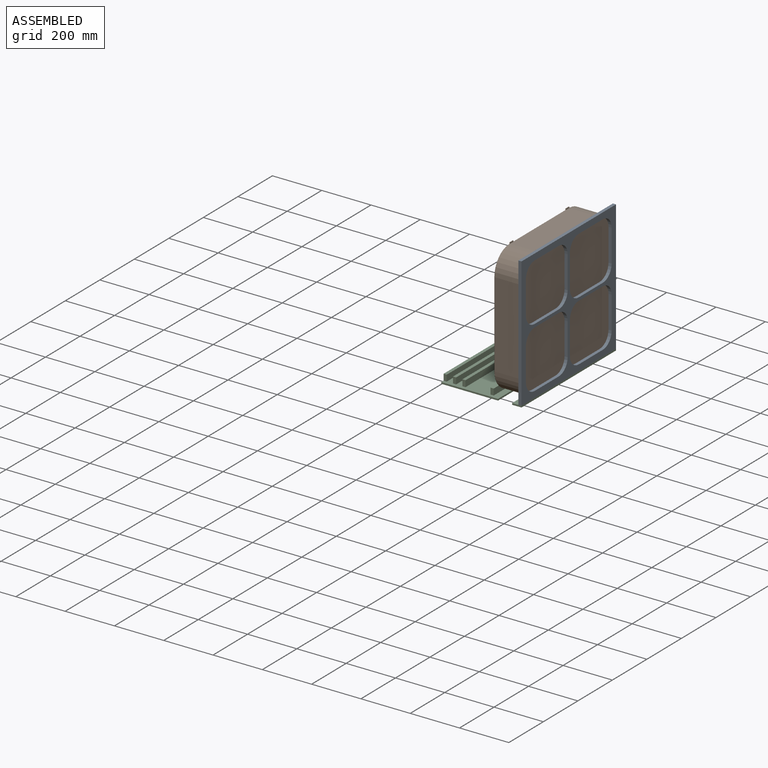
[diagram: assembled view]
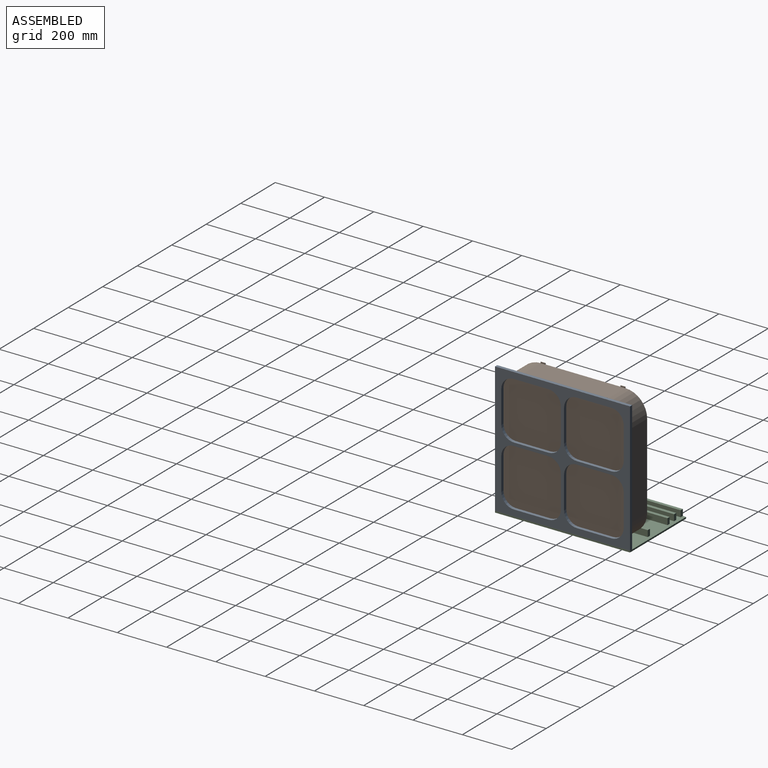
[diagram: assembled view, second angle]
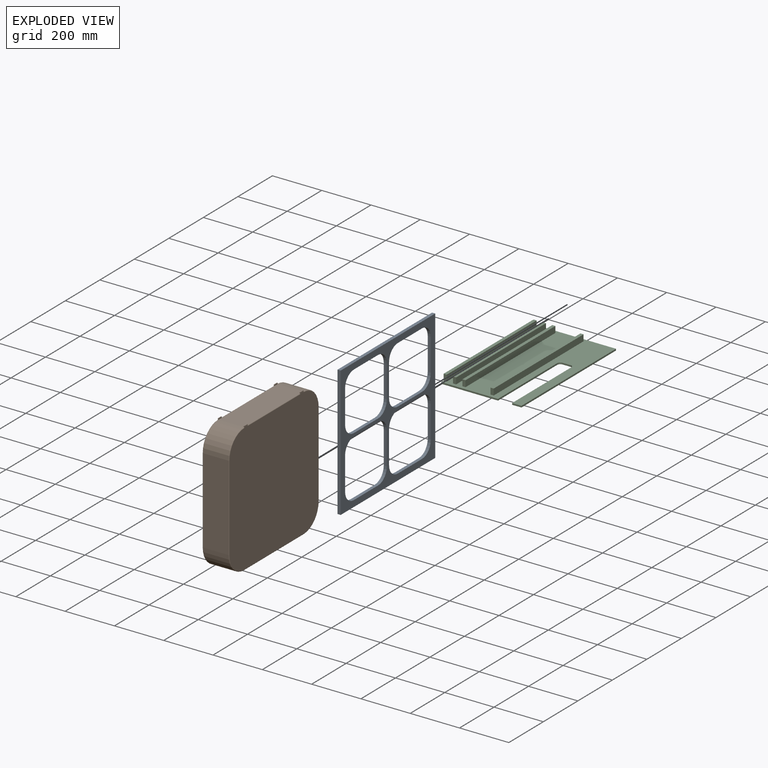
[diagram: exploded view]
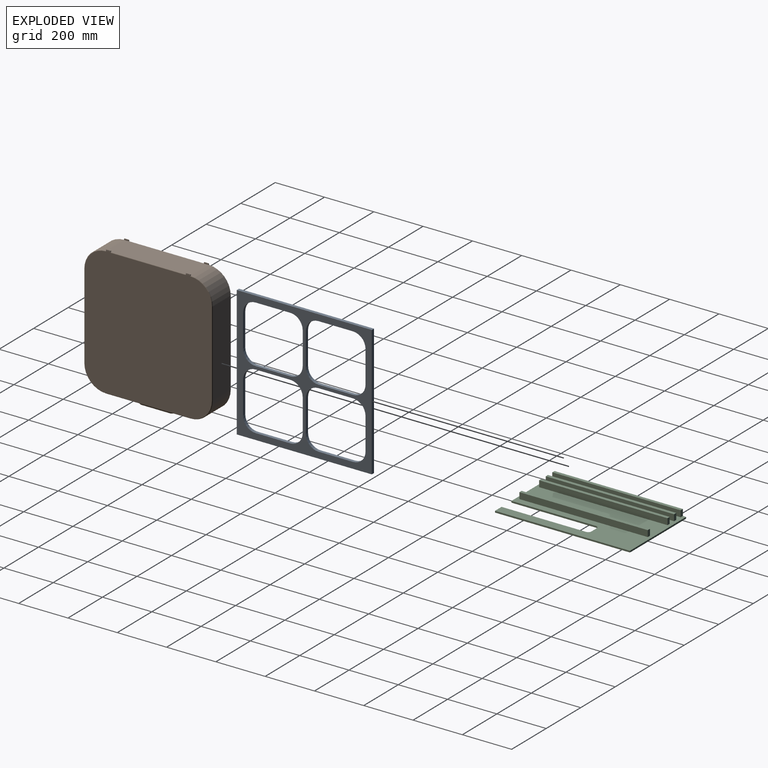
[diagram: exploded view, second angle]
ASSEMBLY  parts=3 mates=3
PART A: 38 faces, bbox 547.7x529.4x12.7 mm
  f0: plane 547.7x529.44mm, normal (0,0,1), area 73227.4mm2, adj f2,f3,f4,f5,f6,f7,f8,f9
  f1: plane 547.7x529.44mm, normal (0,0,-1), area 73227.4mm2, adj f2,f3,f4,f5,f6,f7,f8,f9
  f2: plane 547.7x12.7mm, normal (0,-1,0), area 6955.8mm2, adj f0,f1,f3,f5
  f3: plane 529.44x12.7mm, normal (1,0,0), area 6723.9mm2, adj f0,f1,f2,f4
  f4: plane 547.7x12.7mm, normal (0,1,0), area 6955.8mm2, adj f0,f1,f3,f5
  f5: plane 529.44x12.7mm, normal (-1,0,0), area 6723.9mm2, adj f0,f1,f2,f4
  f6: plane 131.37x12.7mm, normal (-1,0,0), area 1668.4mm2, adj f0,f1,f7,f13
  f7: cylinder r=50.8mm len=50.8mm, axis (0,0,1), area 1013.4mm2, adj f0,f1,f6,f8
  f8: plane 140.5x12.7mm, normal (0,-1,0), area 1784.4mm2, adj f0,f1,f7,f9
  f9: cylinder r=50.8mm len=50.8mm, axis (0,0,1), area 1013.4mm2, adj f0,f1,f8,f10
  f10: plane 131.37x12.7mm, normal (1,0,0), area 1668.4mm2, adj f0,f1,f9,f11
  f11: cylinder r=50.8mm len=50.8mm, axis (0,0,1), area 1013.4mm2, adj f0,f1,f10,f12
  f12: plane 140.5x12.7mm, normal (0,1,0), area 1784.4mm2, adj f0,f1,f11,f13
  f13: cylinder r=50.8mm len=50.8mm, axis (0,0,1), area 1013.4mm2, adj f0,f1,f6,f12
  f14: plane 131.37x12.7mm, normal (-1,0,0), area 1668.4mm2, adj f0,f1,f15,f21
  f15: cylinder r=50.8mm len=50.8mm, axis (0,0,1), area 1013.4mm2, adj f0,f1,f14,f16
  f16: plane 140.5x12.7mm, normal (0,-1,0), area 1784.4mm2, adj f0,f1,f15,f17
  f17: cylinder r=50.8mm len=50.8mm, axis (0,0,1), area 1013.4mm2, adj f0,f1,f16,f18
  f18: plane 131.37x12.7mm, normal (1,0,0), area 1668.4mm2, adj f0,f1,f17,f19
  f19: cylinder r=50.8mm len=50.8mm, axis (0,0,1), area 1013.4mm2, adj f0,f1,f18,f20
  f20: plane 140.5x12.7mm, normal (0,1,0), area 1784.4mm2, adj f0,f1,f19,f21
  f21: cylinder r=50.8mm len=50.8mm, axis (0,0,1), area 1013.4mm2, adj f0,f1,f14,f20
  f22: cylinder r=50.8mm len=50.8mm, axis (0,0,1), area 1013.4mm2, adj f0,f1,f23,f29
  f23: plane 140.5x12.7mm, normal (0,-1,0), area 1784.4mm2, adj f0,f1,f22,f24
  f24: cylinder r=50.8mm len=50.8mm, axis (0,0,1), area 1013.4mm2, adj f0,f1,f23,f25
  f25: plane 131.37x12.7mm, normal (1,0,0), area 1668.4mm2, adj f0,f1,f24,f26
  f26: cylinder r=50.8mm len=50.8mm, axis (0,0,1), area 1013.4mm2, adj f0,f1,f25,f27
  f27: plane 140.5x12.7mm, normal (0,1,0), area 1784.4mm2, adj f0,f1,f26,f28
  f28: cylinder r=50.8mm len=50.8mm, axis (0,0,1), area 1013.4mm2, adj f0,f1,f27,f29
  f29: plane 131.37x12.7mm, normal (-1,0,0), area 1668.4mm2, adj f0,f1,f22,f28
  f30: cylinder r=50.8mm len=50.8mm, axis (0,0,1), area 1013.4mm2, adj f0,f1,f31,f37
  f31: plane 131.37x12.7mm, normal (-1,0,0), area 1668.4mm2, adj f0,f1,f30,f32
  f32: cylinder r=50.8mm len=50.8mm, axis (0,0,1), area 1013.4mm2, adj f0,f1,f31,f33
  f33: plane 140.5x12.7mm, normal (0,-1,0), area 1784.4mm2, adj f0,f1,f32,f34
  f34: cylinder r=50.8mm len=50.8mm, axis (0,0,1), area 1013.4mm2, adj f0,f1,f33,f35
  f35: plane 131.37x12.7mm, normal (1,0,0), area 1668.4mm2, adj f0,f1,f34,f36
  f36: cylinder r=50.8mm len=50.8mm, axis (0,0,1), area 1013.4mm2, adj f0,f1,f35,f37
  f37: plane 140.5x12.7mm, normal (0,1,0), area 1784.4mm2, adj f0,f1,f30,f36
PART B: 59 faces, bbox 535.3x108x556.6 mm
  f0: plane 342.9x102.87mm, normal (0,0,-1), area 35225.7mm2, adj f2,f7,f24,f25,f28,f31,f33,f36
  f1: plane 342.9x102.87mm, normal (0,0,1), area 31372.9mm2, adj f4,f5,f10,f13,f14,f15,f16,f18
  f2: cylinder r=88.9mm len=102.87mm, axis (0,-1,0), area 14365.2mm2, adj f0,f3,f29,f38,f49,f58
  f3: plane 346.08x102.87mm, normal (1,0,0), area 35600.7mm2, adj f2,f4,f48,f57
  f4: cylinder r=88.9mm len=102.87mm, axis (0,-1,0), area 14365.2mm2, adj f1,f3,f47,f56
  f5: cylinder r=88.9mm len=102.87mm, axis (0,-1,0), area 14365.2mm2, adj f1,f6,f45,f54
  f6: plane 346.08x102.87mm, normal (-1,0,0), area 35600.7mm2, adj f5,f7,f44,f53
  f7: cylinder r=88.9mm len=102.87mm, axis (0,-1,0), area 14365.2mm2, adj f0,f6,f23,f34,f43,f52
  f8: plane 521.34x515.62mm, normal (0,1,0), area 261196.5mm2, adj f34,f35,f36,f38,f40,f41,f50,f52
  f9: plane 521.34x515.62mm, normal (0,-1,0), area 261196.5mm2, adj f23,f25,f26,f29,f30,f31,f43,f44
  f10: cone r=22.23mm half-angle=15deg, axis (0,0,-1), area 2225mm2, adj f1,f12
  f11: plane 30.34x30.34mm, normal (0,0,1), area 723.1mm2, adj f12
  f12: torus R=15.17mm, axis (0,0,1), area 347mm2, adj f10,f11
  f13: plane 114.3x25.4mm, normal (0,0.91,0.42), area 946.5mm2, adj f1,f14,f16,f17,f18,f19,f20,f21
  f14: cone r=25.4mm half-angle=25deg, axis (0,0,-1), area 1714.9mm2, adj f1,f13,f15,f17
  f15: plane 114.3x25.4mm, normal (0,-0.91,0.42), area 946.5mm2, adj f1,f14,f16,f17,f18,f19,f20,f21
  f16: cone r=25.4mm half-angle=25deg, axis (0,0,-1), area 1714.9mm2, adj f1,f13,f15,f17
  f17: plane 141.41x27.11mm, normal (0,0,1), area 3676.1mm2, adj f13,f14,f15,f16
  f18: plane 50.8x13.97mm, normal (-1,0,0), area 618.7mm2, adj f1,f13,f15,f19
  f19: cylinder r=5.08mm len=37.77mm, axis (0,-1,0), area 277.3mm2, adj f13,f15,f18,f20
  f20: plane 97.79x33.03mm, normal (0,0,-1), area 3230.4mm2, adj f13,f15,f19,f21
  f21: cylinder r=5.08mm len=37.77mm, axis (0,-1,0), area 277.3mm2, adj f13,f15,f20,f22
  f22: plane 50.8x13.97mm, normal (1,0,0), area 618.7mm2, adj f1,f13,f15,f21
  f23: plane 7.3x3.18mm, normal (-1,0,-0.05), area 15.3mm2, adj f7,f9,f24,f26,f27,f43
  f24: plane 19.05x4.76mm, normal (0,1,-0.05), area 89.7mm2, adj f0,f23,f25,f27
  f25: plane 7.3x3.18mm, normal (1,0,-0.05), area 15.3mm2, adj f0,f9,f24,f26,f27,f51
  f26: plane 19.05x4.76mm, normal (0,-1,-0.05), area 89.7mm2, adj f9,f23,f25,f27
  f27: plane 18.55x2.68mm, normal (0,0,-1), area 49.6mm2, adj f23,f24,f25,f26
  f28: plane 19.05x4.76mm, normal (0,1,-0.05), area 89.7mm2, adj f0,f29,f31,f32
  f29: plane 7.3x3.18mm, normal (1,0,-0.05), area 15.3mm2, adj f2,f9,f28,f30,f32,f49
  f30: plane 19.05x4.76mm, normal (0,-1,-0.05), area 89.7mm2, adj f9,f29,f31,f32
  f31: plane 7.3x3.18mm, normal (-1,0,-0.05), area 15.3mm2, adj f0,f9,f28,f30,f32,f51
  f32: plane 18.55x2.68mm, normal (0,0,-1), area 49.6mm2, adj f28,f29,f30,f31
  f33: plane 19.05x4.76mm, normal (0,-1,-0.05), area 89.7mm2, adj f0,f34,f36,f37
  f34: plane 7.3x3.18mm, normal (-1,0,-0.05), area 15.3mm2, adj f7,f8,f33,f35,f37,f52
  f35: plane 19.05x4.76mm, normal (0,1,-0.05), area 89.7mm2, adj f8,f34,f36,f37
  f36: plane 7.3x3.18mm, normal (1,0,-0.05), area 15.3mm2, adj f0,f8,f33,f35,f37,f50
  f37: plane 18.55x2.68mm, normal (0,0,-1), area 49.6mm2, adj f33,f34,f35,f36
  f38: plane 7.3x3.18mm, normal (1,0,-0.05), area 15.3mm2, adj f2,f8,f39,f41,f42,f58
  f39: plane 19.05x4.76mm, normal (0,-1,-0.05), area 89.7mm2, adj f0,f38,f40,f42
  f40: plane 7.3x3.18mm, normal (-1,0,-0.05), area 15.3mm2, adj f0,f8,f39,f41,f42,f50
  f41: plane 19.05x4.76mm, normal (0,1,-0.05), area 89.7mm2, adj f8,f38,f40,f42
  f42: plane 18.55x2.68mm, normal (0,0,-1), area 49.6mm2, adj f38,f39,f40,f41
  f43: torus R=86.36mm, axis (0,-1,0), area 551.2mm2, adj f7,f9,f23,f44
  f44: cylinder r=2.54mm len=346.08mm, axis (0,0,-1), area 1380.8mm2, adj f6,f9,f43,f45
  f45: torus R=86.36mm, axis (0,-1,0), area 551.4mm2, adj f5,f9,f44,f46
  f46: cylinder r=2.54mm len=342.9mm, axis (-1,0,0), area 1368.1mm2, adj f1,f9,f45,f47
  f47: torus R=86.36mm, axis (0,-1,0), area 551.4mm2, adj f4,f9,f46,f48
  f48: cylinder r=2.54mm len=346.08mm, axis (0,0,1), area 1380.8mm2, adj f3,f9,f47,f49
  f49: torus R=86.36mm, axis (0,-1,0), area 551.2mm2, adj f2,f9,f29,f48
  f50: cylinder r=2.54mm len=304.8mm, axis (-1,0,0), area 1215.7mm2, adj f0,f8,f36,f40
  f51: cylinder r=2.54mm len=304.8mm, axis (1,0,0), area 1215.7mm2, adj f0,f9,f25,f31
  f52: torus R=86.36mm, axis (0,-1,0), area 551.2mm2, adj f7,f8,f34,f53
  f53: cylinder r=2.54mm len=346.08mm, axis (0,0,1), area 1380.8mm2, adj f6,f8,f52,f54
  f54: torus R=86.36mm, axis (0,-1,0), area 551.4mm2, adj f5,f8,f53,f55
  f55: cylinder r=2.54mm len=342.9mm, axis (1,0,0), area 1368.1mm2, adj f1,f8,f54,f56
  f56: torus R=86.36mm, axis (0,-1,0), area 551.4mm2, adj f4,f8,f55,f57
  f57: cylinder r=2.54mm len=346.08mm, axis (0,0,-1), area 1380.8mm2, adj f3,f8,f56,f58
  f58: torus R=86.36mm, axis (0,-1,0), area 551.2mm2, adj f2,f8,f38,f57
PART C: 32 faces, bbox 325.5x547.7x31.8 mm
  f0: plane 547.69x325.45mm, normal (0,0,1), area 131540.1mm2, adj f1,f2,f3,f4,f5,f7,f8,f9
  f1: plane 230.2x6.35mm, normal (0,-1,0), area 1461.8mm2, adj f0,f5,f6,f8
  f2: plane 38.1x6.35mm, normal (0,-1,0), area 241.9mm2, adj f0,f3,f6,f9
  f3: plane 547.69x6.35mm, normal (1,0,0), area 3477.8mm2, adj f0,f2,f4,f6
  f4: plane 325.45x6.35mm, normal (0,1,0), area 2066.6mm2, adj f0,f3,f5,f6
  f5: plane 547.69x6.35mm, normal (-1,0,0), area 3477.8mm2, adj f0,f1,f4,f6
  f6: plane 547.69x325.45mm, normal (0,0,-1), area 157991.7mm2, adj f1,f2,f3,f4,f5,f7,f8,f9
  f7: cylinder r=12.7mm len=12.7mm, axis (0,0,1), area 126.7mm2, adj f0,f6,f8,f11
  f8: plane 342.9x6.35mm, normal (1,0,0), area 2177.4mm2, adj f0,f1,f6,f7
  f9: plane 342.9x6.35mm, normal (-1,0,0), area 2177.4mm2, adj f0,f2,f6,f10
  f10: cylinder r=12.7mm len=12.7mm, axis (0,0,1), area 126.7mm2, adj f0,f6,f9,f11
  f11: plane 31.75x6.35mm, normal (0,-1,0), area 201.6mm2, adj f0,f6,f7,f10
  f12: plane 520.7x25.4mm, normal (1,0,0), area 13225.8mm2, adj f0,f13,f15,f16
  f13: plane 25.4x12.7mm, normal (0,1,0), area 322.6mm2, adj f0,f12,f14,f16
  f14: plane 520.7x25.4mm, normal (-1,0,0), area 13225.8mm2, adj f0,f13,f15,f16
  f15: plane 25.4x12.7mm, normal (0,-1,0), area 322.6mm2, adj f0,f12,f14,f16
  f16: plane 520.7x12.7mm, normal (0,0,1), area 6612.9mm2, adj f12,f13,f14,f15
  f17: plane 520.7x25.4mm, normal (1,0,0), area 13225.8mm2, adj f0,f18,f20,f21
  f18: plane 25.4x12.7mm, normal (0,1,0), area 322.6mm2, adj f0,f17,f19,f21
  f19: plane 520.7x25.4mm, normal (-1,0,0), area 13225.8mm2, adj f0,f18,f20,f21
  f20: plane 25.4x12.7mm, normal (0,-1,0), area 322.6mm2, adj f0,f17,f19,f21
  f21: plane 520.7x12.7mm, normal (0,0,1), area 6612.9mm2, adj f17,f18,f19,f20
  f22: plane 25.4x12.7mm, normal (0,1,0), area 322.6mm2, adj f0,f23,f25,f26
  f23: plane 520.7x25.4mm, normal (-1,0,0), area 13225.8mm2, adj f0,f22,f24,f26
  f24: plane 25.4x12.7mm, normal (0,-1,0), area 322.6mm2, adj f0,f23,f25,f26
  f25: plane 520.7x25.4mm, normal (1,0,0), area 13225.8mm2, adj f0,f22,f24,f26
  f26: plane 520.7x12.7mm, normal (0,0,1), area 6612.9mm2, adj f22,f23,f24,f25
  f27: plane 25.4x12.7mm, normal (0,1,0), area 322.6mm2, adj f0,f28,f30,f31
  f28: plane 520.7x25.4mm, normal (-1,0,0), area 13225.8mm2, adj f0,f27,f29,f31
  f29: plane 25.4x12.7mm, normal (0,-1,0), area 322.6mm2, adj f0,f28,f30,f31
  f30: plane 520.7x25.4mm, normal (1,0,0), area 13225.8mm2, adj f0,f27,f29,f31
  f31: plane 520.7x12.7mm, normal (0,0,1), area 6612.9mm2, adj f27,f28,f29,f30
PLACE A rot(axis=(0.58,0.58,0.58),120deg) t=(150.03,0.01,271.07)mm
PLACE B rot(axis=(-0.71,-0.71,0),180deg) t=(96.05,1.59,266.7)mm
PLACE C at identity fixed
MATE fastened B.f6 <-> C.f15  axis (0,-1,0) through (96.05,-260.35,95.25)mm
MATE fastened A.f5 <-> C.f2  axis (0,-1,0) through (162.73,-273.84,6.35)mm
MATE planar C.f0 <-> B.f1  axis (0,0,1) through (96.05,81.76,6.35)mm
